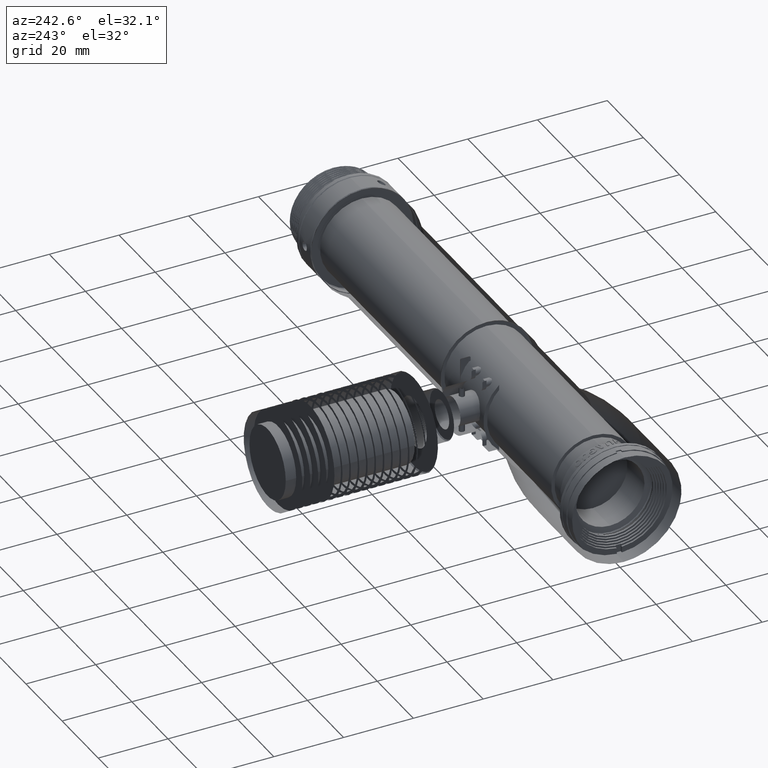
[diagram: clean part render]
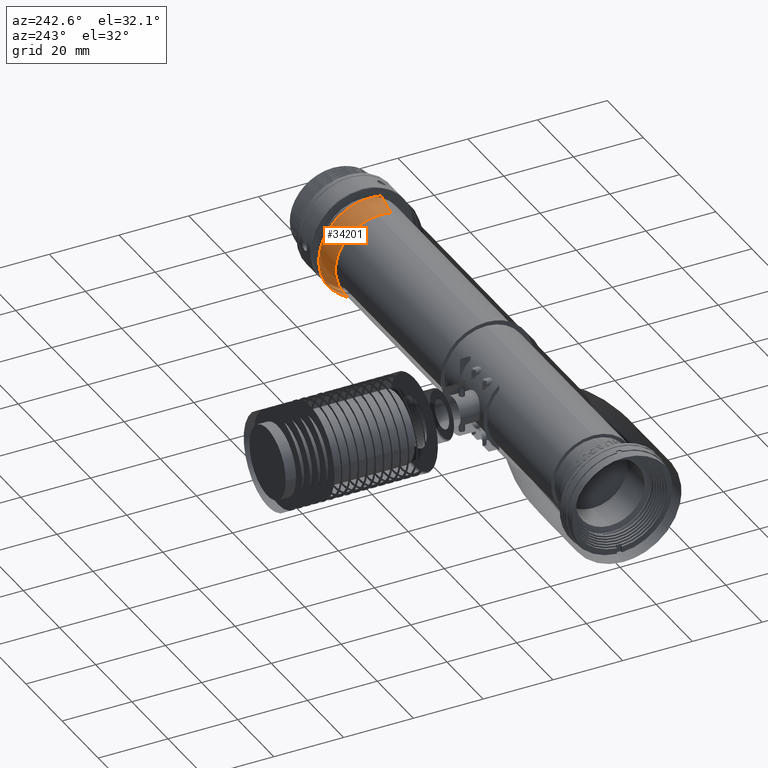
[diagram: same view with one face highlighted and labeled with its STEP entity id]
A machine part, auxiliary view. The second image highlights one B-rep face of the part: STEP entity #34201.
In plain terms, the highlighted conical surface has half-angle 15.819 deg.
Its self-contained STEP definition (entity closure, byte-faithful):
#102 = EDGE_CURVE ( 'NONE', #11463, #39333, #35619, .T. ) ;
#261 = ORIENTED_EDGE ( 'NONE', *, *, #23172, .T. ) ;
#2037 = CARTESIAN_POINT ( 'NONE',  ( 92.39000000000000057, 1.542972259520067174E-15, 13.00000000000000355 ) ) ;
#2135 = CARTESIAN_POINT ( 'NONE',  ( 98.39000000000001478, -2.168838275605688537, 14.57951138798872037 ) ) ;
#2684 = CARTESIAN_POINT ( 'NONE',  ( 98.39000000000005741, 4.971873565254379734, -13.94882844781776399 ) ) ;
#2970 = VECTOR ( 'NONE', #30358, 999.9999999999998863 ) ;
#3322 = CARTESIAN_POINT ( 'NONE',  ( 92.39000000000001478, 9.666522257919407224, -8.835184978908936060 ) ) ;
#4264 = CARTESIAN_POINT ( 'NONE',  ( 92.39000000000000057, -0.9590292501737647246, 13.00000000000000000 ) ) ;
#4642 = CARTESIAN_POINT ( 'NONE',  ( 92.39000000000000057, 2.853658536585369720, -12.68292682926830039 ) ) ;
#5169 = CARTESIAN_POINT ( 'NONE',  ( 92.99000000000000909, 2.890975609756097242, -12.84878048780487525 ) ) ;
#6043 = CARTESIAN_POINT ( 'NONE',  ( 98.39000000000002899, 6.643956818701441946, -13.23431825243582516 ) ) ;
#6614 = VERTEX_POINT ( 'NONE', #38439 ) ;
#6686 = CARTESIAN_POINT ( 'NONE',  ( 92.38999999999997215, 11.50319181633271448, -6.259291031023035856 ) ) ;
#6964 = CARTESIAN_POINT ( 'NONE',  ( 92.39000000000000057, -2.853658536585379490, 12.68292682926829329 ) ) ;
#8996 = CARTESIAN_POINT ( 'NONE',  ( 92.38999999999998636, 4.396894989680760091, -12.33569862732182365 ) ) ;
#9086 = ORIENTED_EDGE ( 'NONE', *, *, #102, .F. ) ;
#9227 = CARTESIAN_POINT ( 'NONE',  ( 92.39000000000000057, 5.875608070960470997, -11.70381886269833771 ) ) ;
#9647 = CARTESIAN_POINT ( 'NONE',  ( 98.39000000000004320, 13.88707594125474998, 5.141834654804544158 ) ) ;
#10062 = CARTESIAN_POINT ( 'NONE',  ( 92.39000000000000057, 8.510809152412029732, -9.953304664562867998 ) ) ;
#10081 = CARTESIAN_POINT ( 'NONE',  ( 98.39000000000002899, 12.24881938856410635, 8.322004890761693474 ) ) ;
#10168 = DIRECTION ( 'NONE',  ( 0.000000000000000000, -0.2195121951219510259, 0.9756097560975610650 ) ) ;
#10897 = EDGE_CURVE ( 'NONE', #39333, #6614, #17587, .T. ) ;
#11463 = VERTEX_POINT ( 'NONE', #36379 ) ;
#11522 = ORIENTED_EDGE ( 'NONE', *, *, #36676, .T. ) ;
#12128 = EDGE_CURVE ( 'NONE', #28853, #37644, #39884, .T. ) ;
#12224 = CARTESIAN_POINT ( 'NONE',  ( 98.39000000000002899, -1.084440767504177838, 14.70000000000000107 ) ) ;
#12357 = CARTESIAN_POINT ( 'NONE',  ( 92.39000000000001478, 9.848635448148788996, 8.631716282632128312 ) ) ;
#12772 = CARTESIAN_POINT ( 'NONE',  ( 98.39000000000001478, 8.470957063690326194, 12.14628454469268171 ) ) ;
#13058 = ORIENTED_EDGE ( 'NONE', *, *, #12128, .T. ) ;
#13219 = CARTESIAN_POINT ( 'NONE',  ( 98.39000000000001478, 1.788670404385731105, 14.70000000000000107 ) ) ;
#13959 = DIRECTION ( 'NONE',  ( 1.000000000000000000, 1.006809238777479845E-16, 4.137548044115454732E-18 ) ) ;
#14177 = CARTESIAN_POINT ( 'NONE',  ( 92.99000000000000909, 4.440892098500630106E-15, 2.220446049250309925E-15 ) ) ;
#17587 = B_SPLINE_CURVE_WITH_KNOTS ( 'NONE', 3,
 ( #40329, #13219, #33375, #27092, #12772, #40764, #10081, #9647, #23293, #23734, #30237, #33153, #19699, #26425, #40097, #6043, #2684, #43674 ),
 .UNSPECIFIED., .F., .F.,
 ( 4, 2, 2, 2, 2, 2, 2, 2, 4 ),
 ( 0.5182546318781917627, 0.5784728028934177368, 0.6386909739086437110, 0.6989091449238697962, 0.7591273159390958813, 0.8193454869543218555, 0.8795636579695479407, 0.9397818289847739148, 1.000000000000000000 ),
 .UNSPECIFIED. ) ;
#19281 = CARTESIAN_POINT ( 'NONE',  ( 92.39000000000000057, 3.163169587173967567, 12.70812749137995645 ) ) ;
#19550 = CARTESIAN_POINT ( 'NONE',  ( 98.39000000000001478, 6.824658582039129123E-15, 14.70000000000000107 ) ) ;
#19699 = CARTESIAN_POINT ( 'NONE',  ( 98.39000000000002899, 13.00745536154544801, -7.077813704310671916 ) ) ;
#20005 = CARTESIAN_POINT ( 'NONE',  ( 92.39000000000000057, -2.853658536585379490, 12.68292682926829329 ) ) ;
#20546 = CARTESIAN_POINT ( 'NONE',  ( 92.39000000000000057, 12.97971485658636759, -1.740444890279651213 ) ) ;
#21955 = LINE ( 'NONE', #5169, #36000 ) ;
#23172 = EDGE_CURVE ( 'NONE', #37644, #35583, #38896, .T. ) ;
#23293 = CARTESIAN_POINT ( 'NONE',  ( 98.39000000000002899, 14.41256529730096858, 3.401073854911305983 ) ) ;
#23734 = CARTESIAN_POINT ( 'NONE',  ( 98.39000000000002899, 14.80761650210342850, -0.1543869883108107688 ) ) ;
#23990 = CARTESIAN_POINT ( 'NONE',  ( 92.39000000000000057, 1.542972259520067174E-15, 13.00000000000000355 ) ) ;
#25541 = DIRECTION ( 'NONE',  ( 0.9621267263153837623, 0.05983958907571300390, -0.2659537292253910667 ) ) ;
#26039 = EDGE_CURVE ( 'NONE', #28853, #11463, #29028, .T. ) ;
#26425 = CARTESIAN_POINT ( 'NONE',  ( 98.39000000000004320, 10.93060593780116641, -9.990555322304727426 ) ) ;
#27092 = CARTESIAN_POINT ( 'NONE',  ( 98.38999999999998636, 6.918449483108062736, 13.09291405933786301 ) ) ;
#27181 = FACE_OUTER_BOUND ( 'NONE', #37031, .T. ) ;
#28853 = VERTEX_POINT ( 'NONE', #20005 ) ;
#29028 = LINE ( 'NONE', #42682, #2970 ) ;
#29236 = ORIENTED_EDGE ( 'NONE', *, *, #26039, .F. ) ;
#29378 = CARTESIAN_POINT ( 'NONE',  ( 92.39000000000000057, 7.491322573331574475, 10.74161218238129045 ) ) ;
#29472 = CARTESIAN_POINT ( 'NONE',  ( 98.39000000000001478, 6.824658582039129123E-15, 14.70000000000000107 ) ) ;
#30237 = CARTESIAN_POINT ( 'NONE',  ( 98.39000000000002899, 14.67706218398611995, -1.968041529777774912 ) ) ;
#30358 = DIRECTION ( 'NONE',  ( 0.9621267263153837623, -0.05983958907571284430, 0.2659537292253910667 ) ) ;
#30436 = CARTESIAN_POINT ( 'NONE',  ( 92.39000000000004320, 1.581817364422754668, 13.00000000000000000 ) ) ;
#32775 = ORIENTED_EDGE ( 'NONE', *, *, #10897, .F. ) ;
#32960 = CARTESIAN_POINT ( 'NONE',  ( 92.39000000000000057, 12.18360818694617009, -4.802274223882644577 ) ) ;
#33153 = CARTESIAN_POINT ( 'NONE',  ( 98.39000000000002899, 13.77684925754681267, -5.430263930082698032 ) ) ;
#33189 = CONICAL_SURFACE ( 'NONE', #38911, 13.16999999999999815, 0.2760970193954369600 ) ;
#33375 = CARTESIAN_POINT ( 'NONE',  ( 98.39000000000002899, 3.576814840881345159, 14.36995954794502417 ) ) ;
#34013 = CARTESIAN_POINT ( 'NONE',  ( 92.39000000000000057, 6.118356685741814793, 11.57876753546887194 ) ) ;
#34050 = CARTESIAN_POINT ( 'NONE',  ( 92.39000000000000057, 1.542972259520067174E-15, 13.00000000000000355 ) ) ;
#34201 = ADVANCED_FACE ( 'NONE', ( #27181 ), #33189, .F. ) ;
#34235 = CARTESIAN_POINT ( 'NONE',  ( 92.39000000000000057, 13.09517105628194322, -0.1365327107510524440 ) ) ;
#35583 = VERTEX_POINT ( 'NONE', #4642 ) ;
#35619 = B_SPLINE_CURVE_WITH_KNOTS ( 'NONE', 3,
 ( #36191, #2135, #12224, #29472 ),
 .UNSPECIFIED., .F., .F.,
 ( 4, 4 ),
 ( 0.4817453681069959748, 0.5182546318781917627 ),
 .UNSPECIFIED. ) ;
#36000 = VECTOR ( 'NONE', #25541, 999.9999999999998863 ) ;
#36191 = CARTESIAN_POINT ( 'NONE',  ( 98.39000000000000057, -3.226829268292698671, 14.34146341463414132 ) ) ;
#36379 = CARTESIAN_POINT ( 'NONE',  ( 98.39000000000000057, -3.226829268292698671, 14.34146341463414132 ) ) ;
#36676 = EDGE_CURVE ( 'NONE', #35583, #6614, #21955, .T. ) ;
#37031 = EDGE_LOOP ( 'NONE', ( #13058, #261, #11522, #32775, #9086, #29236 ) ) ;
#37170 = CARTESIAN_POINT ( 'NONE',  ( 92.39000000000000057, 2.853658536585369720, -12.68292682926830039 ) ) ;
#37383 = CARTESIAN_POINT ( 'NONE',  ( 92.39000000000000057, 10.83228925519274277, 7.359596161898108946 ) ) ;
#37644 = VERTEX_POINT ( 'NONE', #34050 ) ;
#38439 = CARTESIAN_POINT ( 'NONE',  ( 98.39000000000000057, 3.226829268292689790, -14.34146341463415908 ) ) ;
#38896 = B_SPLINE_CURVE_WITH_KNOTS ( 'NONE', 3,
 ( #2037, #30436, #19281, #34013, #29378, #12357, #37383, #42817, #40745, #34235, #20546, #32960, #6686, #3322, #10062, #9227, #8996, #37170 ),
 .UNSPECIFIED., .F., .F.,
 ( 4, 2, 2, 2, 2, 2, 2, 2, 4 ),
 ( 0.5182546318781912076, 0.5784728028934172928, 0.6386909739086434890, 0.6989091449238695741, 0.7591273159390956593, 0.8193454869543217445, 0.8795636579695478297, 0.9397818289847740258, 1.000000000000000000 ),
 .UNSPECIFIED. ) ;
#38911 = AXIS2_PLACEMENT_3D ( 'NONE', #14177, #13959, #10168 ) ;
#39333 = VERTEX_POINT ( 'NONE', #19550 ) ;
#39884 = B_SPLINE_CURVE_WITH_KNOTS ( 'NONE', 3,
 ( #6964, #41235, #4264, #23990 ),
 .UNSPECIFIED., .F., .F.,
 ( 4, 4 ),
 ( 0.4817453681069953086, 0.5182546318781912076 ),
 .UNSPECIFIED. ) ;
#40097 = CARTESIAN_POINT ( 'NONE',  ( 98.39000000000002899, 9.623761118496668487, -11.25489065915956033 ) ) ;
#40329 = CARTESIAN_POINT ( 'NONE',  ( 98.39000000000001478, 6.824658582039129123E-15, 14.70000000000000107 ) ) ;
#40745 = CARTESIAN_POINT ( 'NONE',  ( 92.39000000000000057, 12.74580604523215044, 3.007752388697074508 ) ) ;
#40764 = CARTESIAN_POINT ( 'NONE',  ( 98.39000000000000057, 11.13653392982978652, 9.760479181130159887 ) ) ;
#41235 = CARTESIAN_POINT ( 'NONE',  ( 92.39000000000000057, -1.918020243732920349, 12.89344544516009528 ) ) ;
#42682 = CARTESIAN_POINT ( 'NONE',  ( 92.99000000000000909, -2.890975609756090137, 12.84878048780487880 ) ) ;
#42817 = CARTESIAN_POINT ( 'NONE',  ( 92.39000000000001478, 12.28108756709603533, 4.547200715133285165 ) ) ;
#43674 = CARTESIAN_POINT ( 'NONE',  ( 98.39000000000000057, 3.226829268292689790, -14.34146341463415908 ) ) ;